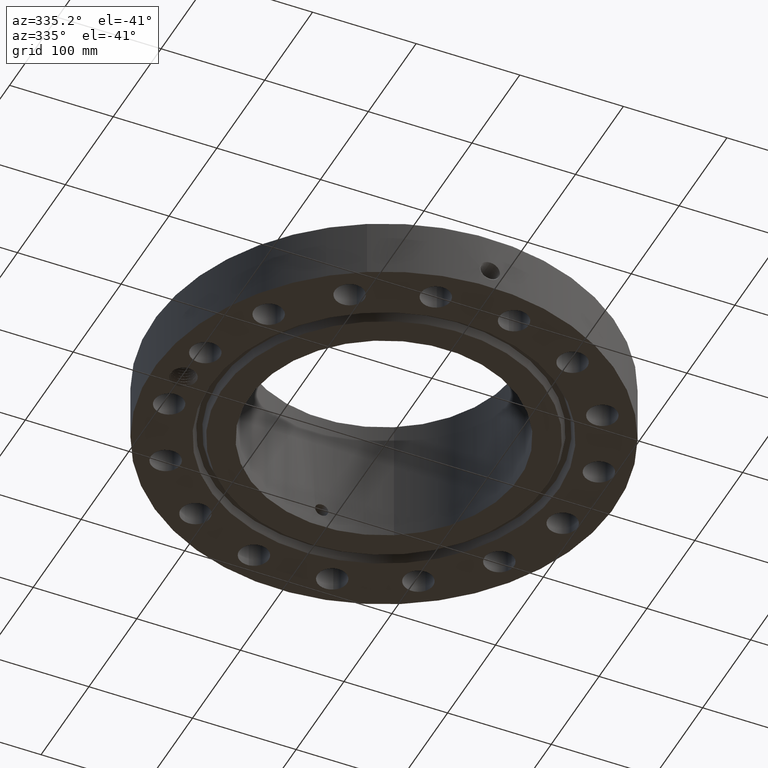
[diagram: clean part render]
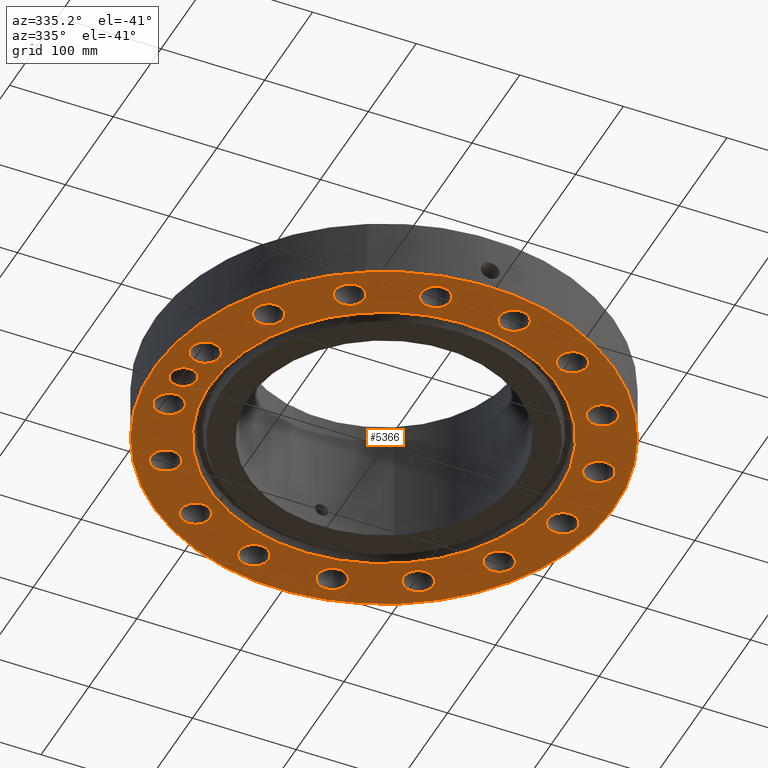
[diagram: same view with one face highlighted and labeled with its STEP entity id]
A machine part, auxiliary view. The second image highlights one B-rep face of the part: STEP entity #5366.
In plain terms, the highlighted planar face has unit normal (0, 0, -1).
Its self-contained STEP definition (entity closure, byte-faithful):
#598=AXIS2_PLACEMENT_3D('Plane Axis2P3D',#595,#596,#597) ;
#3614=AXIS2_PLACEMENT_3D('Circle Axis2P3D',#3612,#3613,$) ;
#3640=AXIS2_PLACEMENT_3D('Circle Axis2P3D',#3638,#3639,$) ;
#3913=AXIS2_PLACEMENT_3D('Circle Axis2P3D',#3911,#3912,$) ;
#4026=AXIS2_PLACEMENT_3D('Circle Axis2P3D',#4024,#4025,$) ;
#4277=AXIS2_PLACEMENT_3D('Circle Axis2P3D',#4275,#4276,$) ;
#4296=AXIS2_PLACEMENT_3D('Circle Axis2P3D',#4294,#4295,$) ;
#4320=AXIS2_PLACEMENT_3D('Circle Axis2P3D',#4318,#4319,$) ;
#4339=AXIS2_PLACEMENT_3D('Circle Axis2P3D',#4337,#4338,$) ;
#4363=AXIS2_PLACEMENT_3D('Circle Axis2P3D',#4361,#4362,$) ;
#4382=AXIS2_PLACEMENT_3D('Circle Axis2P3D',#4380,#4381,$) ;
#4406=AXIS2_PLACEMENT_3D('Circle Axis2P3D',#4404,#4405,$) ;
#4425=AXIS2_PLACEMENT_3D('Circle Axis2P3D',#4423,#4424,$) ;
#4449=AXIS2_PLACEMENT_3D('Circle Axis2P3D',#4447,#4448,$) ;
#4468=AXIS2_PLACEMENT_3D('Circle Axis2P3D',#4466,#4467,$) ;
#4492=AXIS2_PLACEMENT_3D('Circle Axis2P3D',#4490,#4491,$) ;
#4511=AXIS2_PLACEMENT_3D('Circle Axis2P3D',#4509,#4510,$) ;
#4535=AXIS2_PLACEMENT_3D('Circle Axis2P3D',#4533,#4534,$) ;
#4554=AXIS2_PLACEMENT_3D('Circle Axis2P3D',#4552,#4553,$) ;
#4578=AXIS2_PLACEMENT_3D('Circle Axis2P3D',#4576,#4577,$) ;
#4597=AXIS2_PLACEMENT_3D('Circle Axis2P3D',#4595,#4596,$) ;
#4621=AXIS2_PLACEMENT_3D('Circle Axis2P3D',#4619,#4620,$) ;
#4640=AXIS2_PLACEMENT_3D('Circle Axis2P3D',#4638,#4639,$) ;
#4664=AXIS2_PLACEMENT_3D('Circle Axis2P3D',#4662,#4663,$) ;
#4683=AXIS2_PLACEMENT_3D('Circle Axis2P3D',#4681,#4682,$) ;
#4707=AXIS2_PLACEMENT_3D('Circle Axis2P3D',#4705,#4706,$) ;
#4726=AXIS2_PLACEMENT_3D('Circle Axis2P3D',#4724,#4725,$) ;
#4750=AXIS2_PLACEMENT_3D('Circle Axis2P3D',#4748,#4749,$) ;
#4769=AXIS2_PLACEMENT_3D('Circle Axis2P3D',#4767,#4768,$) ;
#4793=AXIS2_PLACEMENT_3D('Circle Axis2P3D',#4791,#4792,$) ;
#4812=AXIS2_PLACEMENT_3D('Circle Axis2P3D',#4810,#4811,$) ;
#4836=AXIS2_PLACEMENT_3D('Circle Axis2P3D',#4834,#4835,$) ;
#4855=AXIS2_PLACEMENT_3D('Circle Axis2P3D',#4853,#4854,$) ;
#4879=AXIS2_PLACEMENT_3D('Circle Axis2P3D',#4877,#4878,$) ;
#4898=AXIS2_PLACEMENT_3D('Circle Axis2P3D',#4896,#4897,$) ;
#4922=AXIS2_PLACEMENT_3D('Circle Axis2P3D',#4920,#4921,$) ;
#4941=AXIS2_PLACEMENT_3D('Circle Axis2P3D',#4939,#4940,$) ;
#5252=AXIS2_PLACEMENT_3D('Circle Axis2P3D',#5250,#5251,$) ;
#5261=AXIS2_PLACEMENT_3D('Circle Axis2P3D',#5259,#5260,$) ;
#5268=AXIS2_PLACEMENT_3D('Circle Axis2P3D',#5266,#5267,$) ;
#595=CARTESIAN_POINT('Axis2P3D Location',(0.,5.12500000002,0.)) ;
#3612=CARTESIAN_POINT('Axis2P3D Location',(0.,0.,3.49676543189E-017)) ;
#3616=CARTESIAN_POINT('Vertex',(-3.16876309742,5.80038194284,3.49676543189E-017)) ;
#3618=CARTESIAN_POINT('Vertex',(3.16876309742,-5.80038194284,3.49676543189E-017)) ;
#3638=CARTESIAN_POINT('Axis2P3D Location',(0.,0.,3.49676543189E-017)) ;
#3911=CARTESIAN_POINT('Axis2P3D Location',(0.,0.,8.39223703654E-016)) ;
#3915=CARTESIAN_POINT('Vertex',(-4.1949734628,-7.67884741657,5.59482469102E-016)) ;
#3917=CARTESIAN_POINT('Vertex',(4.1949734628,7.67884741657,5.59482469102E-016)) ;
#4024=CARTESIAN_POINT('Axis2P3D Location',(0.,0.,8.39223703654E-016)) ;
#4272=CARTESIAN_POINT('Vertex',(7.96993399777,-1.756042007,0.)) ;
#4275=CARTESIAN_POINT('Axis2P3D Location',(7.4784877631,-1.48756370538,0.)) ;
#4279=CARTESIAN_POINT('Vertex',(6.98704152844,-1.21908540376,0.)) ;
#4294=CARTESIAN_POINT('Axis2P3D Location',(7.4784877631,-1.48756370538,0.)) ;
#4315=CARTESIAN_POINT('Vertex',(5.98866087428,-3.8001130871,0.)) ;
#4318=CARTESIAN_POINT('Axis2P3D Location',(6.33995579383,-4.23622302679,0.)) ;
#4322=CARTESIAN_POINT('Vertex',(6.69125071339,-4.67233296648,0.)) ;
#4337=CARTESIAN_POINT('Axis2P3D Location',(6.33995579383,-4.23622302679,0.)) ;
#4358=CARTESIAN_POINT('Vertex',(4.07856088935,-5.80260800104,0.)) ;
#4361=CARTESIAN_POINT('Axis2P3D Location',(4.23622302679,-6.33995579383,0.)) ;
#4365=CARTESIAN_POINT('Vertex',(4.39388516423,-6.87730358663,0.)) ;
#4380=CARTESIAN_POINT('Axis2P3D Location',(4.23622302679,-6.33995579383,0.)) ;
#4401=CARTESIAN_POINT('Vertex',(1.54753698127,-6.92170844759,0.)) ;
#4404=CARTESIAN_POINT('Axis2P3D Location',(1.48756370538,-7.4784877631,0.)) ;
#4408=CARTESIAN_POINT('Vertex',(1.42759042949,-8.03526707862,0.)) ;
#4423=CARTESIAN_POINT('Axis2P3D Location',(1.48756370538,-7.4784877631,0.)) ;
#4444=CARTESIAN_POINT('Vertex',(-1.21908540376,-6.98704152844,0.)) ;
#4447=CARTESIAN_POINT('Axis2P3D Location',(-1.48756370538,-7.4784877631,0.)) ;
#4451=CARTESIAN_POINT('Vertex',(-1.756042007,-7.96993399777,0.)) ;
#4466=CARTESIAN_POINT('Axis2P3D Location',(-1.48756370538,-7.4784877631,0.)) ;
#4487=CARTESIAN_POINT('Vertex',(-3.8001130871,-5.98866087428,0.)) ;
#4490=CARTESIAN_POINT('Axis2P3D Location',(-4.23622302679,-6.33995579383,0.)) ;
#4494=CARTESIAN_POINT('Vertex',(-4.67233296648,-6.69125071339,0.)) ;
#4509=CARTESIAN_POINT('Axis2P3D Location',(-4.23622302679,-6.33995579383,0.)) ;
#4530=CARTESIAN_POINT('Vertex',(-5.80260800104,-4.07856088935,0.)) ;
#4533=CARTESIAN_POINT('Axis2P3D Location',(-6.33995579383,-4.23622302679,0.)) ;
#4537=CARTESIAN_POINT('Vertex',(-6.87730358663,-4.39388516423,0.)) ;
#4552=CARTESIAN_POINT('Axis2P3D Location',(-6.33995579383,-4.23622302679,0.)) ;
#4573=CARTESIAN_POINT('Vertex',(-6.92170844759,-1.54753698127,0.)) ;
#4576=CARTESIAN_POINT('Axis2P3D Location',(-7.4784877631,-1.48756370538,0.)) ;
#4580=CARTESIAN_POINT('Vertex',(-8.03526707862,-1.42759042949,0.)) ;
#4595=CARTESIAN_POINT('Axis2P3D Location',(-7.4784877631,-1.48756370538,0.)) ;
#4616=CARTESIAN_POINT('Vertex',(-6.98704152844,1.21908540376,0.)) ;
#4619=CARTESIAN_POINT('Axis2P3D Location',(-7.4784877631,1.48756370538,0.)) ;
#4623=CARTESIAN_POINT('Vertex',(-7.96993399777,1.756042007,0.)) ;
#4638=CARTESIAN_POINT('Axis2P3D Location',(-7.4784877631,1.48756370538,0.)) ;
#4659=CARTESIAN_POINT('Vertex',(-5.98866087428,3.8001130871,0.)) ;
#4662=CARTESIAN_POINT('Axis2P3D Location',(-6.33995579383,4.23622302679,0.)) ;
#4666=CARTESIAN_POINT('Vertex',(-6.69125071339,4.67233296648,0.)) ;
#4681=CARTESIAN_POINT('Axis2P3D Location',(-6.33995579383,4.23622302679,0.)) ;
#4702=CARTESIAN_POINT('Vertex',(-4.07856088935,5.80260800104,0.)) ;
#4705=CARTESIAN_POINT('Axis2P3D Location',(-4.23622302679,6.33995579383,0.)) ;
#4709=CARTESIAN_POINT('Vertex',(-4.39388516423,6.87730358663,0.)) ;
#4724=CARTESIAN_POINT('Axis2P3D Location',(-4.23622302679,6.33995579383,0.)) ;
#4745=CARTESIAN_POINT('Vertex',(-1.54753698127,6.92170844759,0.)) ;
#4748=CARTESIAN_POINT('Axis2P3D Location',(-1.48756370538,7.4784877631,0.)) ;
#4752=CARTESIAN_POINT('Vertex',(-1.42759042949,8.03526707862,0.)) ;
#4767=CARTESIAN_POINT('Axis2P3D Location',(-1.48756370538,7.4784877631,0.)) ;
#4788=CARTESIAN_POINT('Vertex',(1.21908540376,6.98704152844,0.)) ;
#4791=CARTESIAN_POINT('Axis2P3D Location',(1.48756370538,7.4784877631,0.)) ;
#4795=CARTESIAN_POINT('Vertex',(1.756042007,7.96993399777,0.)) ;
#4810=CARTESIAN_POINT('Axis2P3D Location',(1.48756370538,7.4784877631,0.)) ;
#4831=CARTESIAN_POINT('Vertex',(3.8001130871,5.98866087428,0.)) ;
#4834=CARTESIAN_POINT('Axis2P3D Location',(4.23622302679,6.33995579383,-1.67844740731E-015)) ;
#4838=CARTESIAN_POINT('Vertex',(4.67233296648,6.69125071339,-1.67844740731E-015)) ;
#4853=CARTESIAN_POINT('Axis2P3D Location',(4.23622302679,6.33995579383,-1.67844740731E-015)) ;
#4874=CARTESIAN_POINT('Vertex',(5.80260800104,4.07856088935,0.)) ;
#4877=CARTESIAN_POINT('Axis2P3D Location',(6.33995579383,4.23622302679,0.)) ;
#4881=CARTESIAN_POINT('Vertex',(6.87730358663,4.39388516423,0.)) ;
#4896=CARTESIAN_POINT('Axis2P3D Location',(6.33995579383,4.23622302679,0.)) ;
#4917=CARTESIAN_POINT('Vertex',(6.92170844759,1.54753698127,0.)) ;
#4920=CARTESIAN_POINT('Axis2P3D Location',(7.4784877631,1.48756370538,0.)) ;
#4924=CARTESIAN_POINT('Vertex',(8.03526707862,1.42759042949,0.)) ;
#4939=CARTESIAN_POINT('Axis2P3D Location',(7.4784877631,1.48756370538,0.)) ;
#5250=CARTESIAN_POINT('Axis2P3D Location',(-7.62500000003,0.,0.)) ;
#5254=CARTESIAN_POINT('Vertex',(-7.18840267549,-0.238514205457,0.)) ;
#5256=CARTESIAN_POINT('Vertex',(-8.11670610883,0.0757056971033,0.)) ;
#5259=CARTESIAN_POINT('Axis2P3D Location',(-7.62500000003,0.,0.)) ;
#5263=CARTESIAN_POINT('Vertex',(-8.06159732457,0.238514205457,0.)) ;
#5266=CARTESIAN_POINT('Axis2P3D Location',(-7.62500000003,0.,0.)) ;
#5270=CARTESIAN_POINT('Vertex',(-8.08311349621,0.194005862323,0.)) ;
#5274=CARTESIAN_POINT('Control Point',(-8.10602538921,0.136462282232,0.)) ;
#5275=CARTESIAN_POINT('Control Point',(-8.10215852615,0.14825804559,0.)) ;
#5276=CARTESIAN_POINT('Control Point',(-8.09792807786,0.159925190697,0.)) ;
#5277=CARTESIAN_POINT('Control Point',(-8.09333938542,0.171448620246,0.)) ;
#5278=CARTESIAN_POINT('Control Point',(-8.08839877955,0.182813600093,0.)) ;
#5279=CARTESIAN_POINT('Control Point',(-8.08311349621,0.194005862323,0.)) ;
#5280=CARTESIAN_POINT('Vertex',(-8.10602538921,0.13646228223,-4.37095678986E-018)) ;
#5284=CARTESIAN_POINT('Control Point',(-8.10602538921,0.13646228223,0.)) ;
#5285=CARTESIAN_POINT('Control Point',(-8.10891322437,0.124447634858,0.)) ;
#5286=CARTESIAN_POINT('Control Point',(-8.11142831538,0.11234909254,0.)) ;
#5287=CARTESIAN_POINT('Control Point',(-8.11356707991,0.100182066304,0.)) ;
#5288=CARTESIAN_POINT('Control Point',(-8.11532689557,0.0879622824771,0.)) ;
#5289=CARTESIAN_POINT('Control Point',(-8.11670610883,0.0757056971033,0.)) ;
#596=DIRECTION('Axis2P3D Direction',(0.,0.,-0.0393700787402)) ;
#597=DIRECTION('Axis2P3D XDirection',(0.0393700787402,0.,0.)) ;
#3613=DIRECTION('Axis2P3D Direction',(0.,0.,-0.0393700787402)) ;
#3639=DIRECTION('Axis2P3D Direction',(0.,0.,-0.0393700787402)) ;
#3912=DIRECTION('Axis2P3D Direction',(0.,0.,-0.0393700787402)) ;
#4025=DIRECTION('Axis2P3D Direction',(0.,0.,-0.0393700787402)) ;
#4276=DIRECTION('Axis2P3D Direction',(0.,-0.,-0.0393700787402)) ;
#4295=DIRECTION('Axis2P3D Direction',(0.,-0.,-0.0393700787402)) ;
#4319=DIRECTION('Axis2P3D Direction',(0.,-0.,-0.0393700787402)) ;
#4338=DIRECTION('Axis2P3D Direction',(0.,-0.,-0.0393700787402)) ;
#4362=DIRECTION('Axis2P3D Direction',(0.,-0.,-0.0393700787402)) ;
#4381=DIRECTION('Axis2P3D Direction',(0.,-0.,-0.0393700787402)) ;
#4405=DIRECTION('Axis2P3D Direction',(0.,-0.,-0.0393700787402)) ;
#4424=DIRECTION('Axis2P3D Direction',(0.,-0.,-0.0393700787402)) ;
#4448=DIRECTION('Axis2P3D Direction',(0.,-0.,-0.0393700787402)) ;
#4467=DIRECTION('Axis2P3D Direction',(0.,-0.,-0.0393700787402)) ;
#4491=DIRECTION('Axis2P3D Direction',(-0.,0.,-0.0393700787402)) ;
#4510=DIRECTION('Axis2P3D Direction',(-0.,0.,-0.0393700787402)) ;
#4534=DIRECTION('Axis2P3D Direction',(-0.,0.,-0.0393700787402)) ;
#4553=DIRECTION('Axis2P3D Direction',(-0.,0.,-0.0393700787402)) ;
#4577=DIRECTION('Axis2P3D Direction',(-0.,0.,-0.0393700787402)) ;
#4596=DIRECTION('Axis2P3D Direction',(-0.,0.,-0.0393700787402)) ;
#4620=DIRECTION('Axis2P3D Direction',(-0.,0.,-0.0393700787402)) ;
#4639=DIRECTION('Axis2P3D Direction',(-0.,0.,-0.0393700787402)) ;
#4663=DIRECTION('Axis2P3D Direction',(0.,0.,-0.0393700787402)) ;
#4682=DIRECTION('Axis2P3D Direction',(0.,0.,-0.0393700787402)) ;
#4706=DIRECTION('Axis2P3D Direction',(0.,0.,-0.0393700787402)) ;
#4725=DIRECTION('Axis2P3D Direction',(0.,0.,-0.0393700787402)) ;
#4749=DIRECTION('Axis2P3D Direction',(0.,0.,-0.0393700787402)) ;
#4768=DIRECTION('Axis2P3D Direction',(0.,0.,-0.0393700787402)) ;
#4792=DIRECTION('Axis2P3D Direction',(0.,0.,-0.0393700787402)) ;
#4811=DIRECTION('Axis2P3D Direction',(0.,0.,-0.0393700787402)) ;
#4835=DIRECTION('Axis2P3D Direction',(0.,0.,-0.0393700787402)) ;
#4854=DIRECTION('Axis2P3D Direction',(0.,0.,-0.0393700787402)) ;
#4878=DIRECTION('Axis2P3D Direction',(0.,0.,-0.0393700787402)) ;
#4897=DIRECTION('Axis2P3D Direction',(0.,0.,-0.0393700787402)) ;
#4921=DIRECTION('Axis2P3D Direction',(0.,0.,-0.0393700787402)) ;
#4940=DIRECTION('Axis2P3D Direction',(0.,0.,-0.0393700787402)) ;
#5251=DIRECTION('Axis2P3D Direction',(0.,0.,-0.0393700787402)) ;
#5260=DIRECTION('Axis2P3D Direction',(0.,0.,-0.0393700787402)) ;
#5267=DIRECTION('Axis2P3D Direction',(0.,0.,-0.0393700787402)) ;
#5247=ORIENTED_EDGE('',*,*,#3919,.T.) ;
#5248=ORIENTED_EDGE('',*,*,#4028,.T.) ;
#5292=ORIENTED_EDGE('',*,*,#5258,.F.) ;
#5293=ORIENTED_EDGE('',*,*,#5265,.F.) ;
#5294=ORIENTED_EDGE('',*,*,#5272,.F.) ;
#5295=ORIENTED_EDGE('',*,*,#5282,.F.) ;
#5296=ORIENTED_EDGE('',*,*,#5290,.T.) ;
#5299=ORIENTED_EDGE('',*,*,#4281,.F.) ;
#5300=ORIENTED_EDGE('',*,*,#4298,.F.) ;
#5303=ORIENTED_EDGE('',*,*,#4324,.F.) ;
#5304=ORIENTED_EDGE('',*,*,#4341,.F.) ;
#5307=ORIENTED_EDGE('',*,*,#4367,.F.) ;
#5308=ORIENTED_EDGE('',*,*,#4384,.F.) ;
#5311=ORIENTED_EDGE('',*,*,#4410,.F.) ;
#5312=ORIENTED_EDGE('',*,*,#4427,.F.) ;
#5315=ORIENTED_EDGE('',*,*,#4453,.F.) ;
#5316=ORIENTED_EDGE('',*,*,#4470,.F.) ;
#5319=ORIENTED_EDGE('',*,*,#4496,.F.) ;
#5320=ORIENTED_EDGE('',*,*,#4513,.F.) ;
#5323=ORIENTED_EDGE('',*,*,#4539,.F.) ;
#5324=ORIENTED_EDGE('',*,*,#4556,.F.) ;
#5327=ORIENTED_EDGE('',*,*,#4582,.F.) ;
#5328=ORIENTED_EDGE('',*,*,#4599,.F.) ;
#5331=ORIENTED_EDGE('',*,*,#4625,.F.) ;
#5332=ORIENTED_EDGE('',*,*,#4642,.F.) ;
#5335=ORIENTED_EDGE('',*,*,#4668,.F.) ;
#5336=ORIENTED_EDGE('',*,*,#4685,.F.) ;
#5339=ORIENTED_EDGE('',*,*,#4711,.F.) ;
#5340=ORIENTED_EDGE('',*,*,#4728,.F.) ;
#5343=ORIENTED_EDGE('',*,*,#4754,.F.) ;
#5344=ORIENTED_EDGE('',*,*,#4771,.F.) ;
#5347=ORIENTED_EDGE('',*,*,#4797,.F.) ;
#5348=ORIENTED_EDGE('',*,*,#4814,.F.) ;
#5351=ORIENTED_EDGE('',*,*,#4840,.F.) ;
#5352=ORIENTED_EDGE('',*,*,#4857,.F.) ;
#5355=ORIENTED_EDGE('',*,*,#4883,.F.) ;
#5356=ORIENTED_EDGE('',*,*,#4900,.F.) ;
#5359=ORIENTED_EDGE('',*,*,#4926,.F.) ;
#5360=ORIENTED_EDGE('',*,*,#4943,.F.) ;
#5363=ORIENTED_EDGE('',*,*,#3642,.F.) ;
#5364=ORIENTED_EDGE('',*,*,#3620,.F.) ;
#5297=FACE_BOUND('',#5291,.T.) ;
#5301=FACE_BOUND('',#5298,.T.) ;
#5305=FACE_BOUND('',#5302,.T.) ;
#5309=FACE_BOUND('',#5306,.T.) ;
#5313=FACE_BOUND('',#5310,.T.) ;
#5317=FACE_BOUND('',#5314,.T.) ;
#5321=FACE_BOUND('',#5318,.T.) ;
#5325=FACE_BOUND('',#5322,.T.) ;
#5329=FACE_BOUND('',#5326,.T.) ;
#5333=FACE_BOUND('',#5330,.T.) ;
#5337=FACE_BOUND('',#5334,.T.) ;
#5341=FACE_BOUND('',#5338,.T.) ;
#5345=FACE_BOUND('',#5342,.T.) ;
#5349=FACE_BOUND('',#5346,.T.) ;
#5353=FACE_BOUND('',#5350,.T.) ;
#5357=FACE_BOUND('',#5354,.T.) ;
#5361=FACE_BOUND('',#5358,.T.) ;
#5365=FACE_BOUND('',#5362,.T.) ;
#5366=ADVANCED_FACE('PartBody',(#5249,#5297,#5301,#5305,#5309,#5313,#5317,#5321,#5325,#5329,#5333,#5337,#5341,#5345,#5349,#5353,#5357,#5361,#5365),#599,.T.) ;
#5273=B_SPLINE_CURVE_WITH_KNOTS('',5,(#5274,#5275,#5276,#5277,#5278,#5279),.UNSPECIFIED.,.F.,.U.,(6,6),(0.,2.16413136368),.UNSPECIFIED.) ;
#5283=B_SPLINE_CURVE_WITH_KNOTS('',5,(#5284,#5285,#5286,#5287,#5288,#5289),.UNSPECIFIED.,.F.,.U.,(6,6),(0.,2.1542607375),.UNSPECIFIED.) ;
#3615=CIRCLE('generated circle',#3614,6.60950000003) ;
#3641=CIRCLE('generated circle',#3640,6.60950000003) ;
#3914=CIRCLE('generated circle',#3913,8.75000000003) ;
#4027=CIRCLE('generated circle',#4026,8.75000000003) ;
#4278=CIRCLE('generated circle',#4277,0.560000000002) ;
#4297=CIRCLE('generated circle',#4296,0.560000000002) ;
#4321=CIRCLE('generated circle',#4320,0.560000000002) ;
#4340=CIRCLE('generated circle',#4339,0.560000000002) ;
#4364=CIRCLE('generated circle',#4363,0.560000000002) ;
#4383=CIRCLE('generated circle',#4382,0.560000000002) ;
#4407=CIRCLE('generated circle',#4406,0.560000000002) ;
#4426=CIRCLE('generated circle',#4425,0.560000000002) ;
#4450=CIRCLE('generated circle',#4449,0.560000000002) ;
#4469=CIRCLE('generated circle',#4468,0.560000000002) ;
#4493=CIRCLE('generated circle',#4492,0.560000000002) ;
#4512=CIRCLE('generated circle',#4511,0.560000000002) ;
#4536=CIRCLE('generated circle',#4535,0.560000000002) ;
#4555=CIRCLE('generated circle',#4554,0.560000000002) ;
#4579=CIRCLE('generated circle',#4578,0.560000000002) ;
#4598=CIRCLE('generated circle',#4597,0.560000000002) ;
#4622=CIRCLE('generated circle',#4621,0.560000000002) ;
#4641=CIRCLE('generated circle',#4640,0.560000000002) ;
#4665=CIRCLE('generated circle',#4664,0.560000000002) ;
#4684=CIRCLE('generated circle',#4683,0.560000000002) ;
#4708=CIRCLE('generated circle',#4707,0.560000000002) ;
#4727=CIRCLE('generated circle',#4726,0.560000000002) ;
#4751=CIRCLE('generated circle',#4750,0.560000000002) ;
#4770=CIRCLE('generated circle',#4769,0.560000000002) ;
#4794=CIRCLE('generated circle',#4793,0.560000000002) ;
#4813=CIRCLE('generated circle',#4812,0.560000000002) ;
#4837=CIRCLE('generated circle',#4836,0.560000000002) ;
#4856=CIRCLE('generated circle',#4855,0.560000000002) ;
#4880=CIRCLE('generated circle',#4879,0.560000000002) ;
#4899=CIRCLE('generated circle',#4898,0.560000000002) ;
#4923=CIRCLE('generated circle',#4922,0.560000000002) ;
#4942=CIRCLE('generated circle',#4941,0.560000000002) ;
#5253=CIRCLE('generated circle',#5252,0.497500000002) ;
#5262=CIRCLE('generated circle',#5261,0.497500000002) ;
#5269=CIRCLE('generated circle',#5268,0.497500000002) ;
#3620=EDGE_CURVE('',#3617,#3619,#3615,.T.) ;
#3642=EDGE_CURVE('',#3619,#3617,#3641,.T.) ;
#3919=EDGE_CURVE('',#3916,#3918,#3914,.T.) ;
#4028=EDGE_CURVE('',#3918,#3916,#4027,.T.) ;
#4281=EDGE_CURVE('',#4273,#4280,#4278,.T.) ;
#4298=EDGE_CURVE('',#4280,#4273,#4297,.T.) ;
#4324=EDGE_CURVE('',#4316,#4323,#4321,.T.) ;
#4341=EDGE_CURVE('',#4323,#4316,#4340,.T.) ;
#4367=EDGE_CURVE('',#4359,#4366,#4364,.T.) ;
#4384=EDGE_CURVE('',#4366,#4359,#4383,.T.) ;
#4410=EDGE_CURVE('',#4402,#4409,#4407,.T.) ;
#4427=EDGE_CURVE('',#4409,#4402,#4426,.T.) ;
#4453=EDGE_CURVE('',#4445,#4452,#4450,.T.) ;
#4470=EDGE_CURVE('',#4452,#4445,#4469,.T.) ;
#4496=EDGE_CURVE('',#4488,#4495,#4493,.T.) ;
#4513=EDGE_CURVE('',#4495,#4488,#4512,.T.) ;
#4539=EDGE_CURVE('',#4531,#4538,#4536,.T.) ;
#4556=EDGE_CURVE('',#4538,#4531,#4555,.T.) ;
#4582=EDGE_CURVE('',#4574,#4581,#4579,.T.) ;
#4599=EDGE_CURVE('',#4581,#4574,#4598,.T.) ;
#4625=EDGE_CURVE('',#4617,#4624,#4622,.T.) ;
#4642=EDGE_CURVE('',#4624,#4617,#4641,.T.) ;
#4668=EDGE_CURVE('',#4660,#4667,#4665,.T.) ;
#4685=EDGE_CURVE('',#4667,#4660,#4684,.T.) ;
#4711=EDGE_CURVE('',#4703,#4710,#4708,.T.) ;
#4728=EDGE_CURVE('',#4710,#4703,#4727,.T.) ;
#4754=EDGE_CURVE('',#4746,#4753,#4751,.T.) ;
#4771=EDGE_CURVE('',#4753,#4746,#4770,.T.) ;
#4797=EDGE_CURVE('',#4789,#4796,#4794,.T.) ;
#4814=EDGE_CURVE('',#4796,#4789,#4813,.T.) ;
#4840=EDGE_CURVE('',#4832,#4839,#4837,.T.) ;
#4857=EDGE_CURVE('',#4839,#4832,#4856,.T.) ;
#4883=EDGE_CURVE('',#4875,#4882,#4880,.T.) ;
#4900=EDGE_CURVE('',#4882,#4875,#4899,.T.) ;
#4926=EDGE_CURVE('',#4918,#4925,#4923,.T.) ;
#4943=EDGE_CURVE('',#4925,#4918,#4942,.T.) ;
#5258=EDGE_CURVE('',#5255,#5257,#5253,.T.) ;
#5265=EDGE_CURVE('',#5264,#5255,#5262,.T.) ;
#5272=EDGE_CURVE('',#5271,#5264,#5269,.T.) ;
#5282=EDGE_CURVE('',#5281,#5271,#5273,.T.) ;
#5290=EDGE_CURVE('',#5281,#5257,#5283,.T.) ;
#5246=EDGE_LOOP('',(#5247,#5248)) ;
#5291=EDGE_LOOP('',(#5292,#5293,#5294,#5295,#5296)) ;
#5298=EDGE_LOOP('',(#5299,#5300)) ;
#5302=EDGE_LOOP('',(#5303,#5304)) ;
#5306=EDGE_LOOP('',(#5307,#5308)) ;
#5310=EDGE_LOOP('',(#5311,#5312)) ;
#5314=EDGE_LOOP('',(#5315,#5316)) ;
#5318=EDGE_LOOP('',(#5319,#5320)) ;
#5322=EDGE_LOOP('',(#5323,#5324)) ;
#5326=EDGE_LOOP('',(#5327,#5328)) ;
#5330=EDGE_LOOP('',(#5331,#5332)) ;
#5334=EDGE_LOOP('',(#5335,#5336)) ;
#5338=EDGE_LOOP('',(#5339,#5340)) ;
#5342=EDGE_LOOP('',(#5343,#5344)) ;
#5346=EDGE_LOOP('',(#5347,#5348)) ;
#5350=EDGE_LOOP('',(#5351,#5352)) ;
#5354=EDGE_LOOP('',(#5355,#5356)) ;
#5358=EDGE_LOOP('',(#5359,#5360)) ;
#5362=EDGE_LOOP('',(#5363,#5364)) ;
#5249=FACE_OUTER_BOUND('',#5246,.T.) ;
#599=PLANE('',#598) ;
#3617=VERTEX_POINT('',#3616) ;
#3619=VERTEX_POINT('',#3618) ;
#3916=VERTEX_POINT('',#3915) ;
#3918=VERTEX_POINT('',#3917) ;
#4273=VERTEX_POINT('',#4272) ;
#4280=VERTEX_POINT('',#4279) ;
#4316=VERTEX_POINT('',#4315) ;
#4323=VERTEX_POINT('',#4322) ;
#4359=VERTEX_POINT('',#4358) ;
#4366=VERTEX_POINT('',#4365) ;
#4402=VERTEX_POINT('',#4401) ;
#4409=VERTEX_POINT('',#4408) ;
#4445=VERTEX_POINT('',#4444) ;
#4452=VERTEX_POINT('',#4451) ;
#4488=VERTEX_POINT('',#4487) ;
#4495=VERTEX_POINT('',#4494) ;
#4531=VERTEX_POINT('',#4530) ;
#4538=VERTEX_POINT('',#4537) ;
#4574=VERTEX_POINT('',#4573) ;
#4581=VERTEX_POINT('',#4580) ;
#4617=VERTEX_POINT('',#4616) ;
#4624=VERTEX_POINT('',#4623) ;
#4660=VERTEX_POINT('',#4659) ;
#4667=VERTEX_POINT('',#4666) ;
#4703=VERTEX_POINT('',#4702) ;
#4710=VERTEX_POINT('',#4709) ;
#4746=VERTEX_POINT('',#4745) ;
#4753=VERTEX_POINT('',#4752) ;
#4789=VERTEX_POINT('',#4788) ;
#4796=VERTEX_POINT('',#4795) ;
#4832=VERTEX_POINT('',#4831) ;
#4839=VERTEX_POINT('',#4838) ;
#4875=VERTEX_POINT('',#4874) ;
#4882=VERTEX_POINT('',#4881) ;
#4918=VERTEX_POINT('',#4917) ;
#4925=VERTEX_POINT('',#4924) ;
#5255=VERTEX_POINT('',#5254) ;
#5257=VERTEX_POINT('',#5256) ;
#5264=VERTEX_POINT('',#5263) ;
#5271=VERTEX_POINT('',#5270) ;
#5281=VERTEX_POINT('',#5280) ;